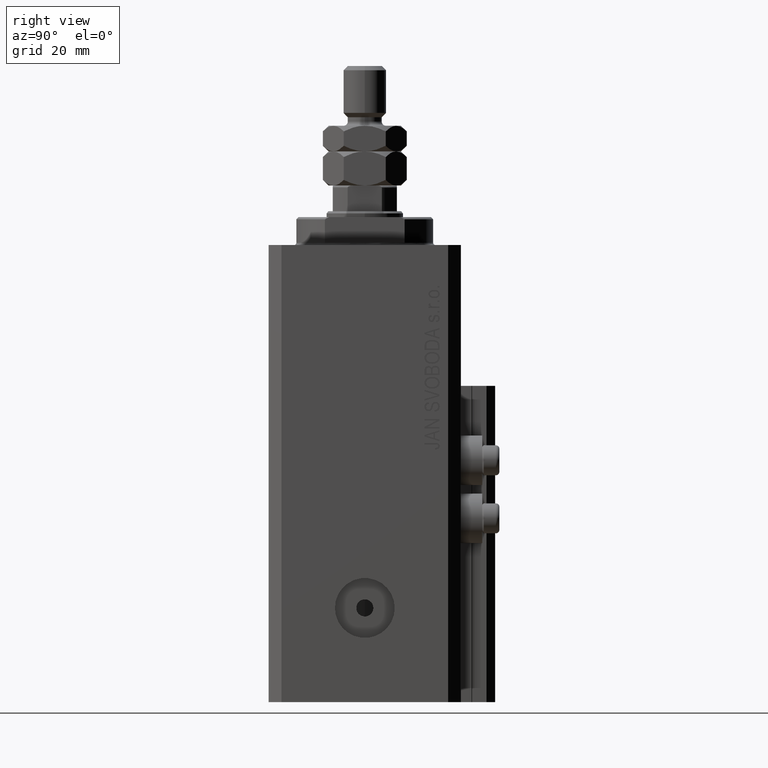
[diagram: clean part render]
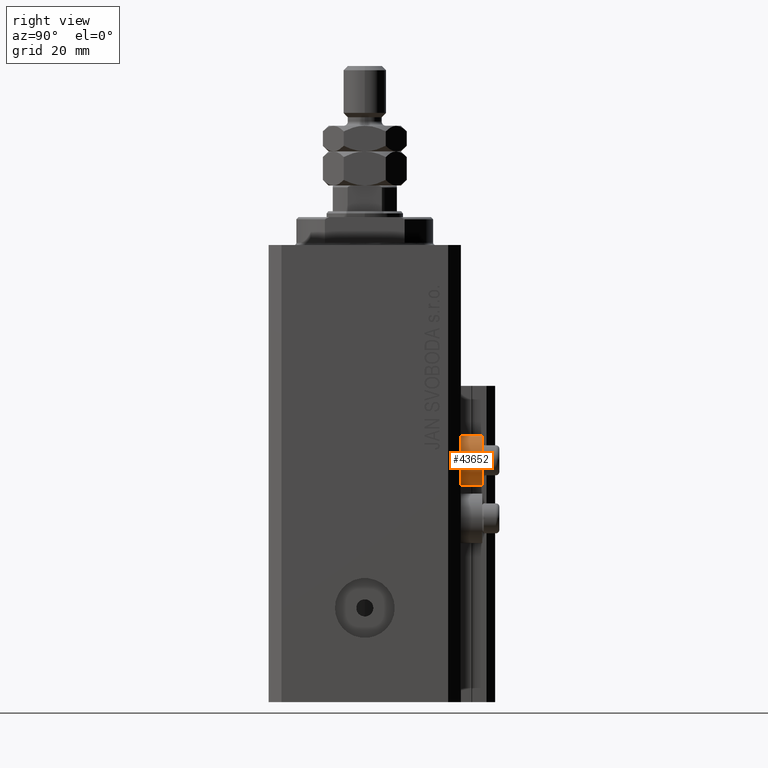
[diagram: same view with one face highlighted and labeled with its STEP entity id]
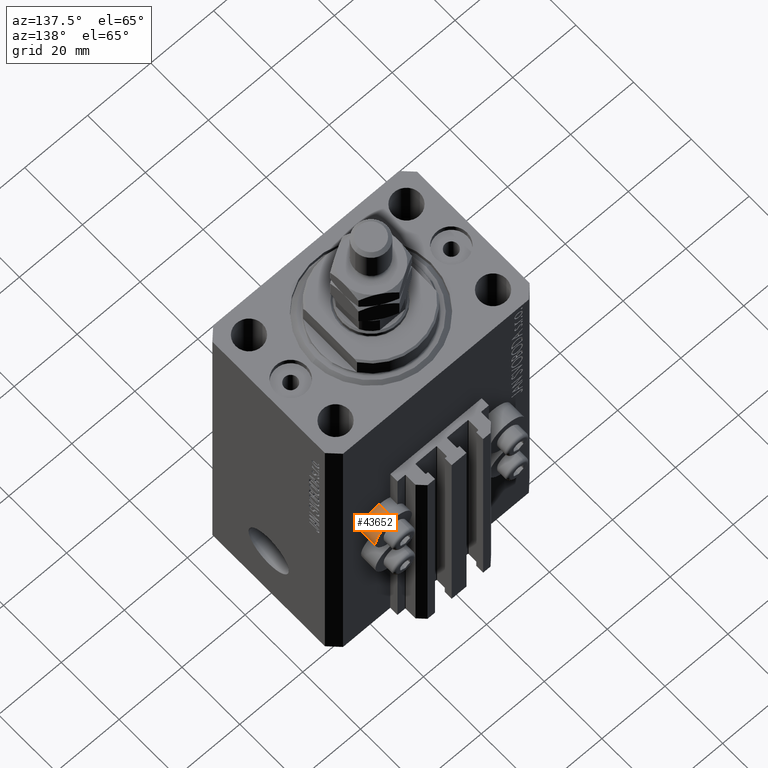
[diagram: same view with one face highlighted and labeled with its STEP entity id]
A machine part, right view. The second image highlights one B-rep face of the part: STEP entity #43652.
A second angle (auxiliary view) of the same face is appended — the face is thin or edge-on in the first view.
In plain terms, the highlighted cylindrical surface (edge-blend (fillet) strip) has radius 5.8 mm, axis along (0, 1, 0).
Its self-contained STEP definition (entity closure, byte-faithful):
#2643 = EDGE_CURVE ( 'NONE', #19668, #45756, #29054, .T. ) ;
#3850 = CARTESIAN_POINT ( 'NONE',  ( 18.00000000000000355, 22.49999999999951328, -50.39999999999999858 ) ) ;
#3951 = CARTESIAN_POINT ( 'NONE',  ( 18.00000000000000355, 27.49999999996051514, -44.60000000000000142 ) ) ;
#5096 = DIRECTION ( 'NONE',  ( -0.000000000000000000, -1.000000000000000000, -0.000000000000000000 ) ) ;
#5437 = CARTESIAN_POINT ( 'NONE',  ( 18.00000000000000355, 27.49999999996051514, -56.20000000000000284 ) ) ;
#8318 = DIRECTION ( 'NONE',  ( 0.000000000000000000, 0.000000000000000000, 1.000000000000000000 ) ) ;
#8759 = DIRECTION ( 'NONE',  ( 0.000000000000000000, 1.000000000000000000, 0.000000000000000000 ) ) ;
#11145 = CARTESIAN_POINT ( 'NONE',  ( 18.00000000000000355, 27.49999999996051514, -44.60000000000000142 ) ) ;
#11678 = CARTESIAN_POINT ( 'NONE',  ( 18.00000000000000355, 27.49999999996051514, -56.20000000000000284 ) ) ;
#15056 = EDGE_LOOP ( 'NONE', ( #18818, #26951, #25454, #42408 ) ) ;
#18818 = ORIENTED_EDGE ( 'NONE', *, *, #44720, .F. ) ;
#18888 = DIRECTION ( 'NONE',  ( 0.000000000000000000, 0.000000000000000000, 1.000000000000000000 ) ) ;
#19077 = EDGE_CURVE ( 'NONE', #47220, #39856, #37015, .T. ) ;
#19668 = VERTEX_POINT ( 'NONE', #30156 ) ;
#22761 = AXIS2_PLACEMENT_3D ( 'NONE', #3850, #41331, #18888 ) ;
#24525 = CARTESIAN_POINT ( 'NONE',  ( 18.00000000000000355, 27.49999999996051514, -50.39999999999999858 ) ) ;
#25194 = AXIS2_PLACEMENT_3D ( 'NONE', #46045, #5096, #8318 ) ;
#25454 = ORIENTED_EDGE ( 'NONE', *, *, #47963, .T. ) ;
#26951 = ORIENTED_EDGE ( 'NONE', *, *, #2643, .T. ) ;
#29054 = LINE ( 'NONE', #5437, #33552 ) ;
#29136 = CIRCLE ( 'NONE', #25194, 5.799999999999999822 ) ;
#30156 = CARTESIAN_POINT ( 'NONE',  ( 18.00000000000000355, 22.49999999999951328, -56.20000000000000284 ) ) ;
#33552 = VECTOR ( 'NONE', #38980, 1000.000000000000000 ) ;
#34886 = FACE_OUTER_BOUND ( 'NONE', #15056, .T. ) ;
#35616 = CYLINDRICAL_SURFACE ( 'NONE', #40004, 5.799999999999999822 ) ;
#37015 = LINE ( 'NONE', #3951, #47576 ) ;
#37502 = DIRECTION ( 'NONE',  ( 0.000000000000000000, 1.000000000000000000, 0.000000000000000000 ) ) ;
#38980 = DIRECTION ( 'NONE',  ( 0.000000000000000000, 1.000000000000000000, 0.000000000000000000 ) ) ;
#39856 = VERTEX_POINT ( 'NONE', #11145 ) ;
#40004 = AXIS2_PLACEMENT_3D ( 'NONE', #24525, #8759, #46245 ) ;
#40573 = CARTESIAN_POINT ( 'NONE',  ( 18.00000000000000355, 22.49999999999951328, -44.60000000000000142 ) ) ;
#41331 = DIRECTION ( 'NONE',  ( -0.000000000000000000, -1.000000000000000000, -0.000000000000000000 ) ) ;
#42406 = CIRCLE ( 'NONE', #22761, 5.799999999999999822 ) ;
#42408 = ORIENTED_EDGE ( 'NONE', *, *, #19077, .F. ) ;
#43652 = ADVANCED_FACE ( 'NONE', ( #34886 ), #35616, .T. ) ;
#44720 = EDGE_CURVE ( 'NONE', #19668, #47220, #42406, .T. ) ;
#45756 = VERTEX_POINT ( 'NONE', #11678 ) ;
#46045 = CARTESIAN_POINT ( 'NONE',  ( 18.00000000000000355, 27.49999999996051514, -50.39999999999999858 ) ) ;
#46245 = DIRECTION ( 'NONE',  ( 0.000000000000000000, 0.000000000000000000, 1.000000000000000000 ) ) ;
#47220 = VERTEX_POINT ( 'NONE', #40573 ) ;
#47576 = VECTOR ( 'NONE', #37502, 1000.000000000000000 ) ;
#47963 = EDGE_CURVE ( 'NONE', #45756, #39856, #29136, .T. ) ;